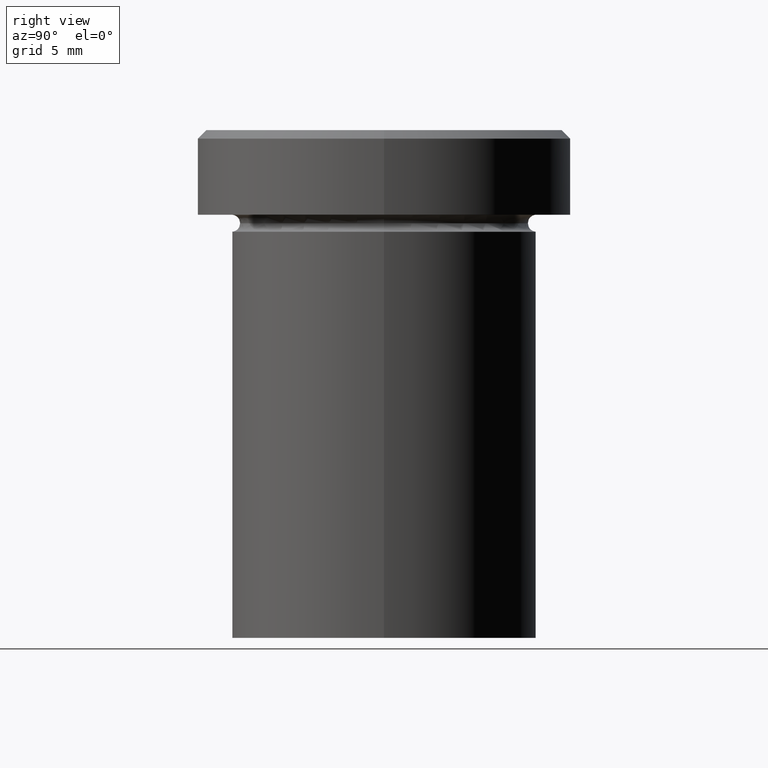
[diagram: clean part render]
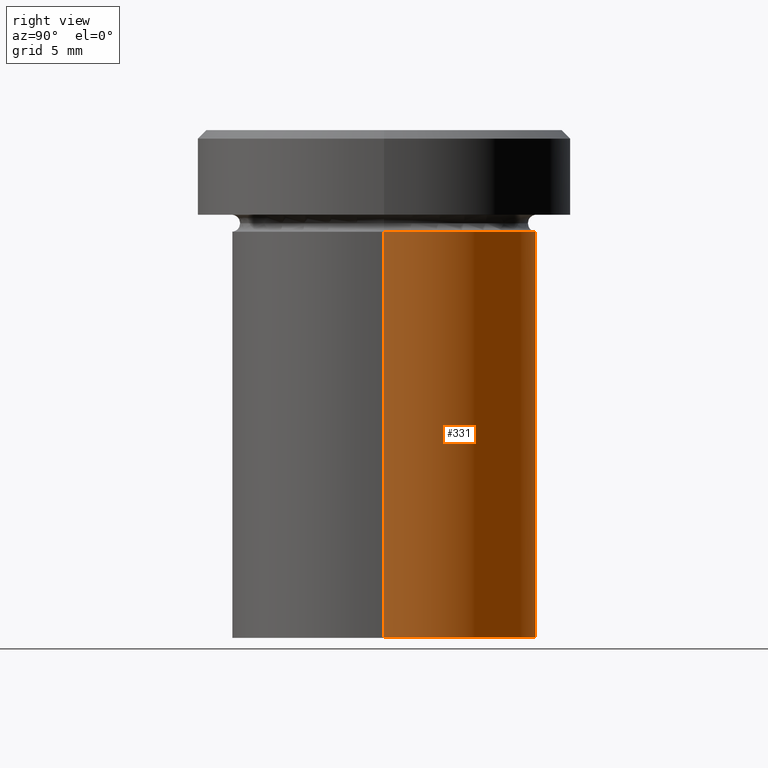
[diagram: same view with one face highlighted and labeled with its STEP entity id]
A machine part, right view. The second image highlights one B-rep face of the part: STEP entity #331.
In plain terms, the highlighted cylindrical surface (partial cylindrical patch) has radius 9 mm, axis along (-0, -0, 1).
Its self-contained STEP definition (entity closure, byte-faithful):
#9 = CIRCLE ( 'NONE', #242, 9.000000000000000000 ) ;
#33 = VECTOR ( 'NONE', #239, 1000.000000000000000 ) ;
#40 = ORIENTED_EDGE ( 'NONE', *, *, #114, .T. ) ;
#43 = CARTESIAN_POINT ( 'NONE',  ( 0.000000000000000000, 0.000000000000000000, 0.000000000000000000 ) ) ;
#47 = CARTESIAN_POINT ( 'NONE',  ( 9.000000000000000000, 0.000000000000000000, -6.000000000000000000 ) ) ;
#57 = ORIENTED_EDGE ( 'NONE', *, *, #376, .F. ) ;
#59 = EDGE_LOOP ( 'NONE', ( #40, #98, #120, #57 ) ) ;
#90 = DIRECTION ( 'NONE',  ( 1.000000000000000000, 0.000000000000000000, 0.000000000000000000 ) ) ;
#96 = DIRECTION ( 'NONE',  ( 1.000000000000000000, 0.000000000000000000, 0.000000000000000000 ) ) ;
#98 = ORIENTED_EDGE ( 'NONE', *, *, #192, .T. ) ;
#113 = VERTEX_POINT ( 'NONE', #371 ) ;
#114 = EDGE_CURVE ( 'NONE', #250, #310, #284, .T. ) ;
#120 = ORIENTED_EDGE ( 'NONE', *, *, #291, .F. ) ;
#134 = AXIS2_PLACEMENT_3D ( 'NONE', #276, #340, #90 ) ;
#165 = FACE_OUTER_BOUND ( 'NONE', #59, .T. ) ;
#169 = VERTEX_POINT ( 'NONE', #47 ) ;
#175 = LINE ( 'NONE', #208, #311 ) ;
#186 = CARTESIAN_POINT ( 'NONE',  ( 9.000000000000000000, 0.000000000000000000, 0.000000000000000000 ) ) ;
#192 = EDGE_CURVE ( 'NONE', #310, #113, #175, .T. ) ;
#208 = CARTESIAN_POINT ( 'NONE',  ( -9.000000000000000000, 1.102182119232617714E-15, 0.000000000000000000 ) ) ;
#239 = DIRECTION ( 'NONE',  ( -0.000000000000000000, -0.000000000000000000, 1.000000000000000000 ) ) ;
#242 = AXIS2_PLACEMENT_3D ( 'NONE', #337, #282, #96 ) ;
#250 = VERTEX_POINT ( 'NONE', #300 ) ;
#264 = CYLINDRICAL_SURFACE ( 'NONE', #398, 9.000000000000000000 ) ;
#274 = DIRECTION ( 'NONE',  ( 1.000000000000000000, 0.000000000000000000, 0.000000000000000000 ) ) ;
#276 = CARTESIAN_POINT ( 'NONE',  ( 0.000000000000000000, 0.000000000000000000, -30.00000000000000000 ) ) ;
#282 = DIRECTION ( 'NONE',  ( -0.000000000000000000, -0.000000000000000000, 1.000000000000000000 ) ) ;
#284 = CIRCLE ( 'NONE', #134, 9.000000000000000000 ) ;
#291 = EDGE_CURVE ( 'NONE', #169, #113, #9, .T. ) ;
#300 = CARTESIAN_POINT ( 'NONE',  ( 9.000000000000000000, 0.000000000000000000, -30.00000000000000000 ) ) ;
#301 = DIRECTION ( 'NONE',  ( -0.000000000000000000, -0.000000000000000000, 1.000000000000000000 ) ) ;
#310 = VERTEX_POINT ( 'NONE', #358 ) ;
#311 = VECTOR ( 'NONE', #301, 1000.000000000000000 ) ;
#331 = ADVANCED_FACE ( 'NONE', ( #165 ), #264, .T. ) ;
#333 = LINE ( 'NONE', #186, #33 ) ;
#337 = CARTESIAN_POINT ( 'NONE',  ( 0.000000000000000000, 0.000000000000000000, -6.000000000000000000 ) ) ;
#340 = DIRECTION ( 'NONE',  ( -0.000000000000000000, -0.000000000000000000, 1.000000000000000000 ) ) ;
#348 = DIRECTION ( 'NONE',  ( -0.000000000000000000, -0.000000000000000000, 1.000000000000000000 ) ) ;
#358 = CARTESIAN_POINT ( 'NONE',  ( -9.000000000000000000, 1.102182119232617714E-15, -30.00000000000000000 ) ) ;
#371 = CARTESIAN_POINT ( 'NONE',  ( -9.000000000000000000, 1.102182119232617714E-15, -6.000000000000000000 ) ) ;
#376 = EDGE_CURVE ( 'NONE', #250, #169, #333, .T. ) ;
#398 = AXIS2_PLACEMENT_3D ( 'NONE', #43, #348, #274 ) ;